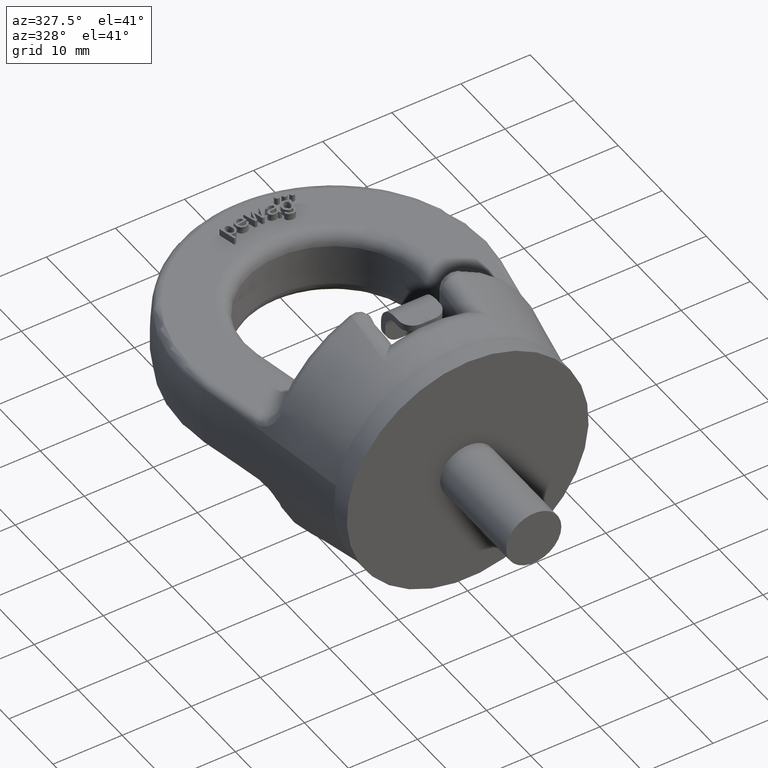
[diagram: clean part render]
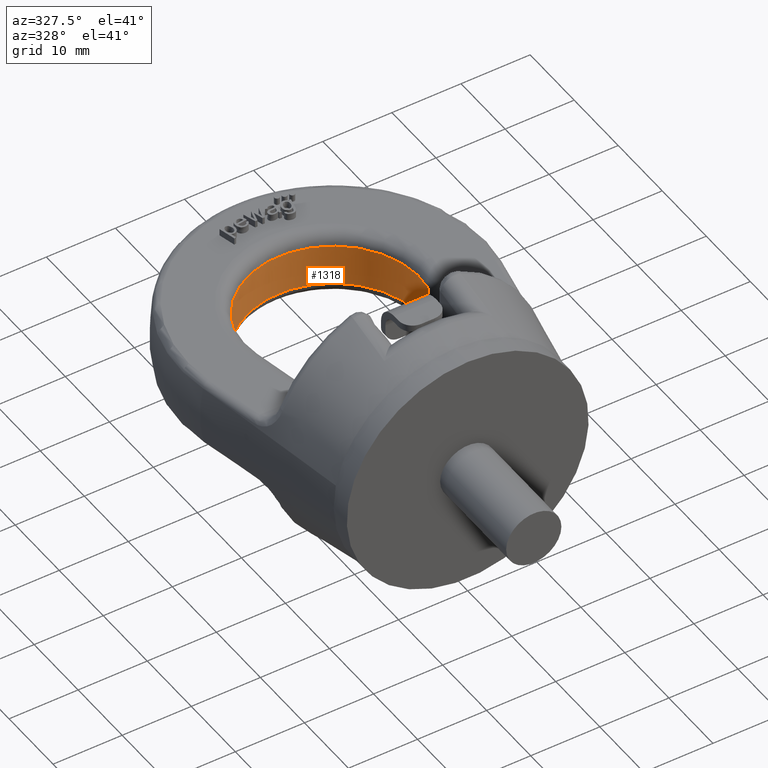
[diagram: same view with one face highlighted and labeled with its STEP entity id]
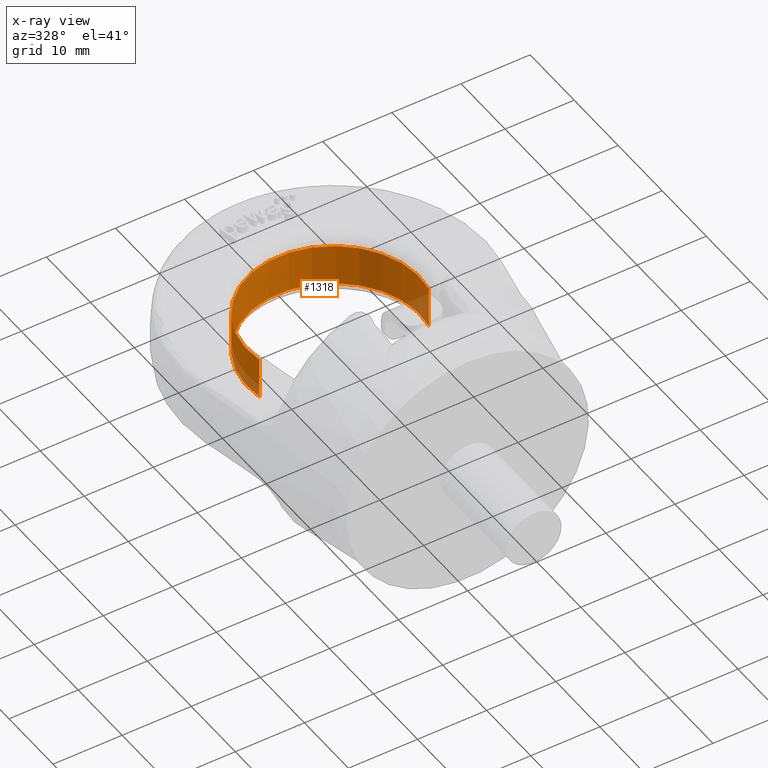
[diagram: x-ray of the same camera — body ghosted, the highlighted face saturated]
A machine part, auxiliary view. The second image highlights one B-rep face of the part: STEP entity #1318.
The next image is the same camera in x-ray: the body ghosted, the highlighted face saturated — about 8% of this face is hidden behind the body in this view.
In plain terms, the highlighted cylindrical surface (partial cylindrical patch) has radius 12.5 mm, axis along (0, 0, -1).
Its self-contained STEP definition (entity closure, byte-faithful):
#1056=CYLINDRICAL_SURFACE('',#5149,12.5);
#1097=FACE_OUTER_BOUND('',#1831,.T.);
#1318=ADVANCED_FACE('',(#1097),#1056,.F.);
#1687=CIRCLE('',#5147,12.5);
#1688=CIRCLE('',#5148,12.5);
#1831=EDGE_LOOP('',(#2835,#2836,#2837,#2838));
#2149=LINE('',#6895,#2429);
#2150=LINE('',#6900,#2430);
#2429=VECTOR('',#5507,1.);
#2430=VECTOR('',#5510,1.);
#2835=ORIENTED_EDGE('',*,*,#4395,.T.);
#2836=ORIENTED_EDGE('',*,*,#4396,.T.);
#2837=ORIENTED_EDGE('',*,*,#4397,.F.);
#2838=ORIENTED_EDGE('',*,*,#4398,.T.);
#4003=VERTEX_POINT('',#6896);
#4004=VERTEX_POINT('',#6897);
#4005=VERTEX_POINT('',#6899);
#4006=VERTEX_POINT('',#6901);
#4395=EDGE_CURVE('',#4003,#4004,#2149,.T.);
#4396=EDGE_CURVE('',#4004,#4005,#1687,.T.);
#4397=EDGE_CURVE('',#4006,#4005,#2150,.T.);
#4398=EDGE_CURVE('',#4006,#4003,#1688,.T.);
#5147=AXIS2_PLACEMENT_3D('',#6898,#5508,#5509);
#5148=AXIS2_PLACEMENT_3D('',#6902,#5511,#5512);
#5149=AXIS2_PLACEMENT_3D('',#6903,#5513,#5514);
#5507=DIRECTION('',(0.,0.,1.));
#5508=DIRECTION('',(0.,1.26490253456642E-16,1.));
#5509=DIRECTION('',(0.,1.,-1.38777878078145E-16));
#5510=DIRECTION('',(0.,0.,1.));
#5511=DIRECTION('',(2.34291072916505E-15,1.26490253456642E-16,-1.));
#5512=DIRECTION('',(-2.46519032881566E-31,1.,1.38777878078145E-16));
#5513=DIRECTION('',(0.,0.,-1.));
#5514=DIRECTION('',(-1.,0.,0.));
#6895=CARTESIAN_POINT('',(12.2627788568105,28.0763138179703,24.75));
#6896=CARTESIAN_POINT('',(12.2627788568105,28.0763138179703,-2.99999999999998));
#6897=CARTESIAN_POINT('',(12.2627788568105,28.0763138179703,3.));
#6898=CARTESIAN_POINT('',(0.,30.5,3.));
#6899=CARTESIAN_POINT('',(-12.2627788568105,28.0763138179703,3.00000000000001));
#6900=CARTESIAN_POINT('',(-12.2627788568105,28.0763138179703,24.75));
#6901=CARTESIAN_POINT('',(-12.2627788568105,28.0763138179703,-3.00000000000003));
#6902=CARTESIAN_POINT('',(7.02873218749515E-15,30.5,-3.));
#6903=CARTESIAN_POINT('',(0.,30.5,24.75));